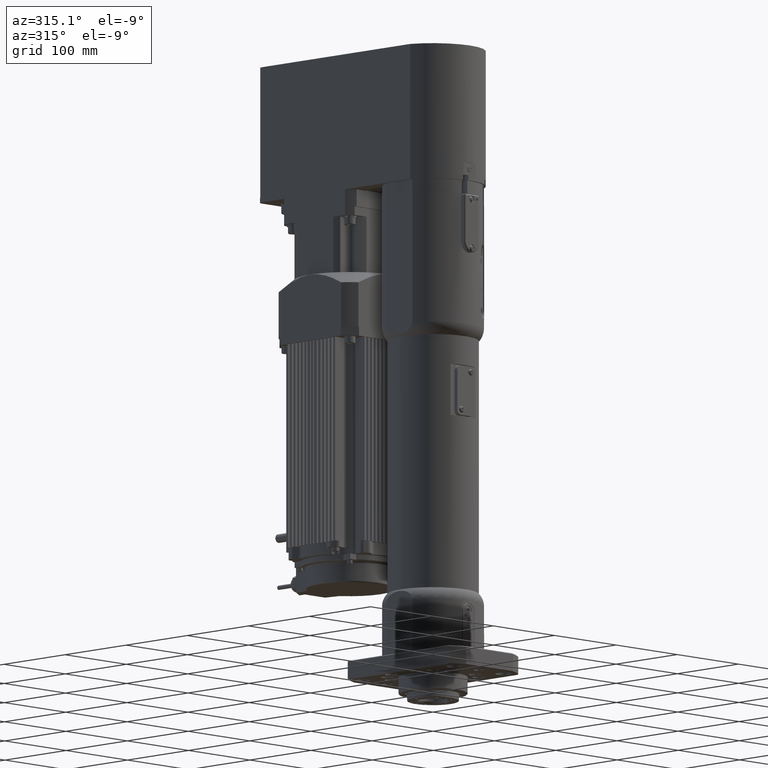
[diagram: clean part render]
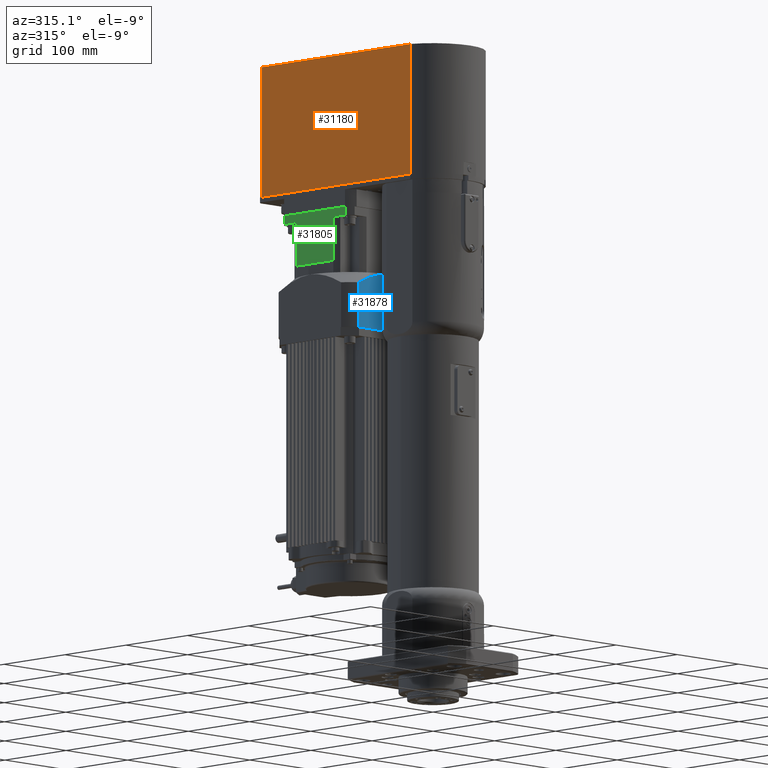
[diagram: same view with three faces highlighted in distinct colors, each labeled with its STEP entity id]
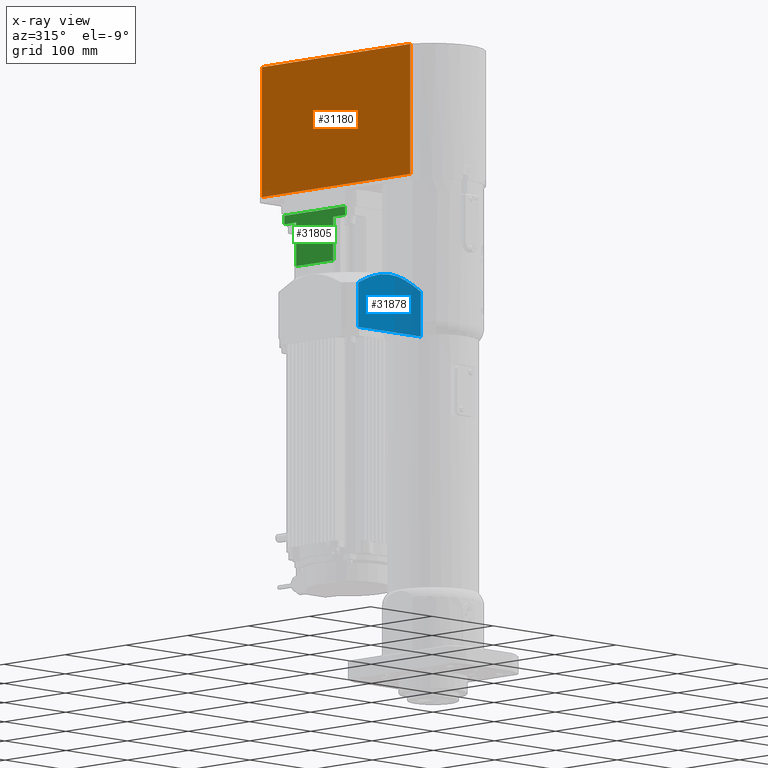
[diagram: x-ray of the same camera — body ghosted, the three highlighted faces saturated]
A machine part, auxiliary view with three faces highlighted in distinct colors.
The next image is the same camera in x-ray (body ghosted, the three faces saturated) — at least one of them is partly hidden behind the body in this view.
Their STEP definitions:

[orange] entity #31180 — the highlighted planar face has unit normal (-1, 0, -0).
#2704=LINE('',#47592,#5098);
#2705=LINE('',#47601,#5099);
#2713=LINE('',#47625,#5107);
#2714=LINE('',#47626,#5108);
#5098=VECTOR('',#37787,10.);
#5099=VECTOR('',#37796,10.);
#5107=VECTOR('',#37822,10.);
#5108=VECTOR('',#37823,10.);
#7290=PLANE('',#33394);
#8441=FACE_OUTER_BOUND('',#10213,.T.);
#10213=EDGE_LOOP('',(#22709,#22710,#22711,#22712));
#14358=VERTEX_POINT('',#47589);
#14359=VERTEX_POINT('',#47591);
#14361=VERTEX_POINT('',#47597);
#14363=VERTEX_POINT('',#47600);
#17604=EDGE_CURVE('',#14359,#14358,#2704,.T.);
#17608=EDGE_CURVE('',#14361,#14363,#2705,.T.);
#17621=EDGE_CURVE('',#14359,#14361,#2713,.T.);
#17622=EDGE_CURVE('',#14363,#14358,#2714,.T.);
#22709=ORIENTED_EDGE('',*,*,#17621,.F.);
#22710=ORIENTED_EDGE('',*,*,#17604,.T.);
#22711=ORIENTED_EDGE('',*,*,#17622,.F.);
#22712=ORIENTED_EDGE('',*,*,#17608,.F.);
#31180=ADVANCED_FACE('',(#8441),#7290,.T.);
#33394=AXIS2_PLACEMENT_3D('',#47624,#37820,#37821);
#37787=DIRECTION('',(-7.10429148815598E-16,2.4897625255593E-15,1.));
#37796=DIRECTION('',(-7.10429148815598E-16,2.4897625255593E-15,1.));
#37820=DIRECTION('center_axis',(-1.,5.63308073921624E-13,-7.10429148817E-16));
#37821=DIRECTION('ref_axis',(-5.63308073921624E-13,-1.,2.4897625255589E-15));
#37822=DIRECTION('',(3.78539906113358E-13,1.,-5.62947358965969E-15));
#37823=DIRECTION('',(-5.63308073921624E-13,-1.,2.4897625255589E-15));
#47589=CARTESIAN_POINT('',(-57.500000000019,-20.3654118542556,732.00000000001));
#47591=CARTESIAN_POINT('',(-57.4999999999783,-20.365411854265,580.000000000011));
#47592=CARTESIAN_POINT('',(-57.5000000000189,-20.3654118542559,580.00000000001));
#47597=CARTESIAN_POINT('',(-57.4999999998822,222.400000000164,580.00000000001));
#47600=CARTESIAN_POINT('',(-57.4999999998823,222.400000000164,732.00000000001));
#47601=CARTESIAN_POINT('',(-57.4999999998822,222.400000000164,580.00000000001));
#47624=CARTESIAN_POINT('Origin',(-57.4999999998822,222.400000000164,580.00000000001));
#47625=CARTESIAN_POINT('',(-57.4999999999783,-20.365411854265,580.000000000011));
#47626=CARTESIAN_POINT('',(-57.4999999998823,222.400000000164,732.00000000001));

[blue] entity #31878 — the highlighted planar face has unit normal (-0, -1, 0).
#424=FACE_BOUND('',#11004,.T.);
#690=(
BOUNDED_CURVE()
B_SPLINE_CURVE(2,(#52136,#52137,#52138),.UNSPECIFIED.,.F.,.F.)
B_SPLINE_CURVE_WITH_KNOTS((3,3),(14.7398985323181,22.9330583873691),
 .UNSPECIFIED.)
CURVE()
GEOMETRIC_REPRESENTATION_ITEM()
RATIONAL_B_SPLINE_CURVE((1.62337880228006,1.62337880228295,1.4307745376028))
REPRESENTATION_ITEM('')
);
#691=(
BOUNDED_CURVE()
B_SPLINE_CURVE(2,(#52151,#52152,#52153),.UNSPECIFIED.,.F.,.F.)
B_SPLINE_CURVE_WITH_KNOTS((3,3),(-22.9330583873691,-14.7398985325641),
 .UNSPECIFIED.)
CURVE()
GEOMETRIC_REPRESENTATION_ITEM()
RATIONAL_B_SPLINE_CURVE((1.4307745376028,1.62337880227717,1.62337880228006))
REPRESENTATION_ITEM('')
);
#3649=LINE('',#52122,#6043);
#3654=LINE('',#52150,#6048);
#3655=LINE('',#52155,#6049);
#3656=LINE('',#52157,#6050);
#3657=LINE('',#52158,#6051);
#6043=VECTOR('',#41314,52.3157564544);
#6048=VECTOR('',#41335,52.3157564544);
#6049=VECTOR('',#41336,101.6120071645);
#6050=VECTOR('',#41337,101.6120071645);
#6051=VECTOR('',#41338,101.6120071645);
#7730=PLANE('',#34680);
#9139=FACE_OUTER_BOUND('',#11003,.T.);
#11003=EDGE_LOOP('',(#26488,#26489,#26490,#26491,#26492,#26493,#26494));
#11004=EDGE_LOOP('',(#26495,#26496));
#12830=CIRCLE('',#34611,5.5);
#12831=CIRCLE('',#34612,5.5);
#15464=VERTEX_POINT('',#51954);
#15465=VERTEX_POINT('',#51956);
#15498=VERTEX_POINT('',#52084);
#15508=VERTEX_POINT('',#52120);
#15509=VERTEX_POINT('',#52121);
#15514=VERTEX_POINT('',#52148);
#15515=VERTEX_POINT('',#52149);
#15516=VERTEX_POINT('',#52154);
#15517=VERTEX_POINT('',#52156);
#19318=EDGE_CURVE('',#15464,#15465,#12830,.T.);
#19319=EDGE_CURVE('',#15465,#15464,#12831,.T.);
#19396=EDGE_CURVE('',#15508,#15509,#3649,.T.);
#19402=EDGE_CURVE('',#15498,#15508,#690,.T.);
#19407=EDGE_CURVE('',#15514,#15515,#3654,.T.);
#19408=EDGE_CURVE('',#15514,#15498,#691,.T.);
#19409=EDGE_CURVE('',#15516,#15509,#3655,.T.);
#19410=EDGE_CURVE('',#15517,#15516,#3656,.T.);
#19411=EDGE_CURVE('',#15515,#15517,#3657,.T.);
#26488=ORIENTED_EDGE('',*,*,#19407,.F.);
#26489=ORIENTED_EDGE('',*,*,#19408,.T.);
#26490=ORIENTED_EDGE('',*,*,#19402,.T.);
#26491=ORIENTED_EDGE('',*,*,#19396,.T.);
#26492=ORIENTED_EDGE('',*,*,#19409,.F.);
#26493=ORIENTED_EDGE('',*,*,#19410,.F.);
#26494=ORIENTED_EDGE('',*,*,#19411,.F.);
#26495=ORIENTED_EDGE('',*,*,#19319,.F.);
#26496=ORIENTED_EDGE('',*,*,#19318,.F.);
#31878=ADVANCED_FACE('',(#9139,#424),#7730,.T.);
#34611=AXIS2_PLACEMENT_3D('',#51957,#41143,#41144);
#34612=AXIS2_PLACEMENT_3D('',#51958,#41145,#41146);
#34680=AXIS2_PLACEMENT_3D('',#52147,#41333,#41334);
#41143=DIRECTION('center_axis',(-1.15445959519768E-12,-1.,5.62947358966023E-15));
#41144=DIRECTION('ref_axis',(-3.20698659247456E-16,-5.62947358965986E-15,
-1.));
#41145=DIRECTION('center_axis',(-1.15445959519768E-12,-1.,5.62947358966023E-15));
#41146=DIRECTION('ref_axis',(-3.20698659247456E-16,-5.62947358965986E-15,
-1.));
#41314=DIRECTION('',(-3.20698659247456E-16,-5.62947358965986E-15,-1.));
#41333=DIRECTION('center_axis',(-1.15445959519768E-12,-1.,5.62947358966023E-15));
#41334=DIRECTION('ref_axis',(-1.,1.15445959519768E-12,3.20698659240957E-16));
#41335=DIRECTION('',(-3.20698659247456E-16,-5.62947358965986E-15,-1.));
#41336=DIRECTION('',(-1.,1.15445959519768E-12,3.20698659240957E-16));
#41337=DIRECTION('',(-1.,1.15445959519768E-12,3.20698659240957E-16));
#41338=DIRECTION('',(-1.,1.15445959519768E-12,3.20698659240957E-16));
#51954=CARTESIAN_POINT('',(23.4999999999251,71.0000000001447,451.00000000001));
#51956=CARTESIAN_POINT('',(23.4999999999251,71.0000000001447,440.00000000001));
#51957=CARTESIAN_POINT('Origin',(23.4999999999251,71.0000000001447,445.50000000001));
#51958=CARTESIAN_POINT('Origin',(23.4999999999251,71.0000000001447,445.50000000001));
#52084=CARTESIAN_POINT('',(5.61731947921211E-10,71.000000000172,479.00000000001));
#52120=CARTESIAN_POINT('',(-50.8060035823249,71.0000000002306,464.31575645441));
#52121=CARTESIAN_POINT('',(-50.8060035823249,71.0000000002303,412.00000000001));
#52122=CARTESIAN_POINT('',(-50.8060035823249,71.0000000002306,464.31575645441));
#52136=CARTESIAN_POINT('Ctrl Pts',(5.9722872822756E-10,71.000000000172,
479.000000000012));
#52137=CARTESIAN_POINT('Ctrl Pts',(-22.3890863240801,71.0000000001978,479.000000000206));
#52138=CARTESIAN_POINT('Ctrl Pts',(-50.8060035823233,71.0000000002306,464.315756454412));
#52147=CARTESIAN_POINT('Origin',(62.9999999999251,71.0000000000993,479.00000000001));
#52148=CARTESIAN_POINT('',(50.8060035821751,71.0000000001133,464.31575645441));
#52149=CARTESIAN_POINT('',(50.8060035821751,71.000000000113,412.00000000001));
#52150=CARTESIAN_POINT('',(50.8060035821751,71.0000000001133,464.31575645441));
#52151=CARTESIAN_POINT('Ctrl Pts',(50.8060035821735,71.0000000001133,464.315756454412));
#52152=CARTESIAN_POINT('Ctrl Pts',(22.3890863246823,71.0000000001462,478.999999999817));
#52153=CARTESIAN_POINT('Ctrl Pts',(5.97325020849866E-10,71.000000000172,
479.000000000011));
#52154=CARTESIAN_POINT('',(-50.0000000000749,71.0000000002294,412.00000000001));
#52155=CARTESIAN_POINT('',(50.8060035821751,71.000000000113,412.00000000001));
#52156=CARTESIAN_POINT('',(49.9999999999251,71.000000000114,412.00000000001));
#52157=CARTESIAN_POINT('',(50.8060035821751,71.000000000113,412.00000000001));
#52158=CARTESIAN_POINT('',(50.8060035821751,71.000000000113,412.00000000001));

[green] entity #31805 — the highlighted planar face has unit normal (-1, 0, 0).
#3108=LINE('',#49339,#5502);
#3544=LINE('',#51793,#5938);
#3545=LINE('',#51796,#5939);
#3546=LINE('',#51798,#5940);
#3547=LINE('',#51800,#5941);
#3548=LINE('',#51802,#5942);
#3549=LINE('',#51804,#5943);
#3550=LINE('',#51805,#5944);
#5502=VECTOR('',#39129,10.);
#5938=VECTOR('',#40969,10.);
#5939=VECTOR('',#40972,19.38569022669);
#5940=VECTOR('',#40973,10.);
#5941=VECTOR('',#40974,19.38569022669);
#5942=VECTOR('',#40975,51.);
#5943=VECTOR('',#40976,60.62177826491);
#5944=VECTOR('',#40977,51.);
#7687=PLANE('',#34553);
#9066=FACE_OUTER_BOUND('',#10925,.T.);
#10925=EDGE_LOOP('',(#26125,#26126,#26127,#26128,#26129,#26130,#26131,#26132));
#14815=VERTEX_POINT('',#49333);
#14816=VERTEX_POINT('',#49338);
#15417=VERTEX_POINT('',#51791);
#15418=VERTEX_POINT('',#51795);
#15419=VERTEX_POINT('',#51797);
#15420=VERTEX_POINT('',#51799);
#15421=VERTEX_POINT('',#51801);
#15422=VERTEX_POINT('',#51803);
#18310=EDGE_CURVE('',#14815,#14816,#3108,.T.);
#19236=EDGE_CURVE('',#14816,#15417,#3544,.T.);
#19237=EDGE_CURVE('',#15417,#15418,#3545,.T.);
#19238=EDGE_CURVE('',#14815,#15419,#3546,.T.);
#19239=EDGE_CURVE('',#15420,#15419,#3547,.T.);
#19240=EDGE_CURVE('',#15421,#15420,#3548,.T.);
#19241=EDGE_CURVE('',#15422,#15421,#3549,.T.);
#19242=EDGE_CURVE('',#15422,#15418,#3550,.T.);
#26125=ORIENTED_EDGE('',*,*,#19237,.F.);
#26126=ORIENTED_EDGE('',*,*,#19236,.F.);
#26127=ORIENTED_EDGE('',*,*,#18310,.F.);
#26128=ORIENTED_EDGE('',*,*,#19238,.T.);
#26129=ORIENTED_EDGE('',*,*,#19239,.F.);
#26130=ORIENTED_EDGE('',*,*,#19240,.F.);
#26131=ORIENTED_EDGE('',*,*,#19241,.F.);
#26132=ORIENTED_EDGE('',*,*,#19242,.T.);
#31805=ADVANCED_FACE('',(#9066),#7687,.T.);
#34553=AXIS2_PLACEMENT_3D('',#51794,#40970,#40971);
#39129=DIRECTION('',(-6.30942557838987E-13,-1.,5.62947358966E-15));
#40969=DIRECTION('',(-3.36727283285917E-16,-5.62947358965984E-15,-1.));
#40970=DIRECTION('center_axis',(-1.,1.1548481732563E-12,3.36727283279416E-16));
#40971=DIRECTION('ref_axis',(1.1548481732563E-12,1.,-5.62947358966023E-15));
#40972=DIRECTION('',(1.1548481732563E-12,1.,-5.62947358966023E-15));
#40973=DIRECTION('',(-3.36727283285917E-16,-5.62947358965984E-15,-1.));
#40974=DIRECTION('',(1.1548481732563E-12,1.,-5.62947358966023E-15));
#40975=DIRECTION('',(3.36727283285917E-16,5.62947358965984E-15,1.));
#40976=DIRECTION('',(1.1548481732563E-12,1.,-5.62947358966023E-15));
#40977=DIRECTION('',(3.36727283285917E-16,5.62947358965984E-15,1.));
#49333=CARTESIAN_POINT('',(-57.4999999999586,185.696579359317,554.00000000001));
#49338=CARTESIAN_POINT('',(-57.5000000000213,86.3034206410023,554.00000000001));
#49339=CARTESIAN_POINT('',(-57.4999999999586,185.696579359317,554.00000000001));
#51791=CARTESIAN_POINT('',(-57.5000000000573,86.3034206410888,544.00000000001));
#51793=CARTESIAN_POINT('',(-57.5000000000573,86.3034206410888,554.00000000001));
#51794=CARTESIAN_POINT('Origin',(-57.5000000000573,86.3034206410888,554.00000000001));
#51795=CARTESIAN_POINT('',(-57.5000000000349,105.689110867779,544.00000000001));
#51796=CARTESIAN_POINT('',(-57.5000000000573,86.3034206410888,544.00000000001));
#51797=CARTESIAN_POINT('',(-57.4999999999425,185.696579359389,544.00000000001));
#51798=CARTESIAN_POINT('',(-57.4999999999425,185.696579359389,554.00000000001));
#51799=CARTESIAN_POINT('',(-57.4999999999649,166.310889132699,544.00000000001));
#51800=CARTESIAN_POINT('',(-57.4999999999649,166.310889132699,544.00000000001));
#51801=CARTESIAN_POINT('',(-57.4999999999649,166.310889132698,493.00000000001));
#51802=CARTESIAN_POINT('',(-57.4999999999649,166.310889132698,493.00000000001));
#51803=CARTESIAN_POINT('',(-57.5000000000349,105.689110867779,493.00000000001));
#51804=CARTESIAN_POINT('',(-57.5000000000349,105.689110867779,493.00000000001));
#51805=CARTESIAN_POINT('',(-57.5000000000349,105.689110867779,493.00000000001));